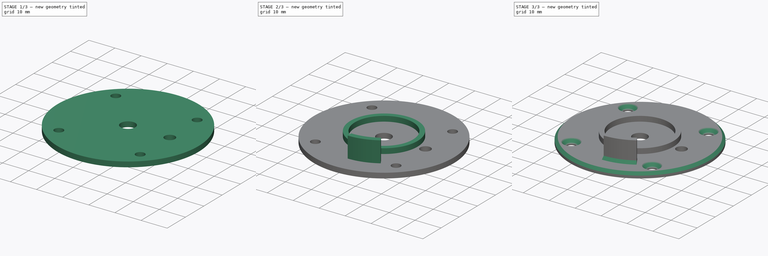
[diagram: build sequence overview — one tinted view per stage of 3, left to right]
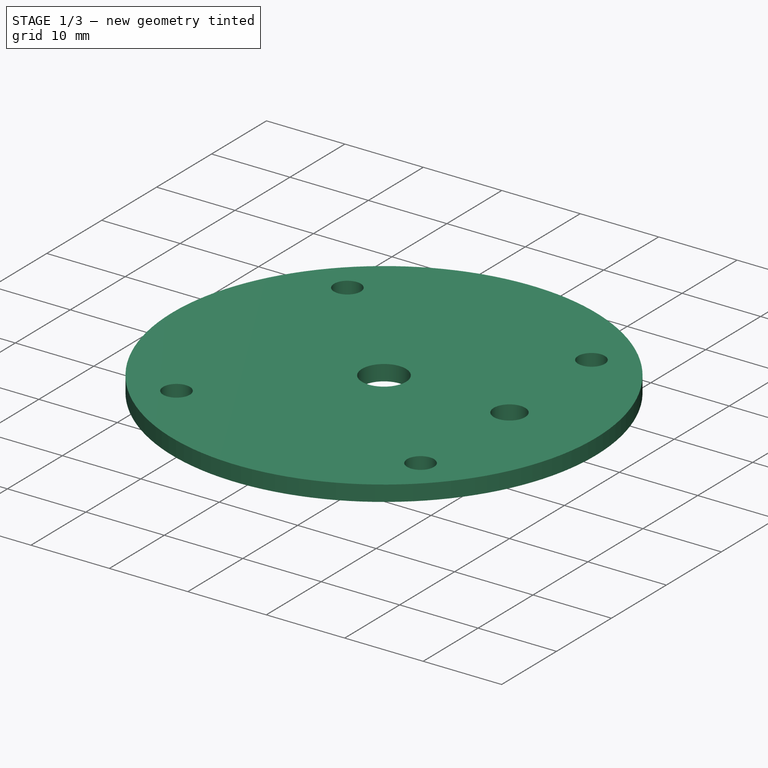
[diagram: stage 1 of 3 — iso view after this stage's code; geometry added in this stage tinted green]
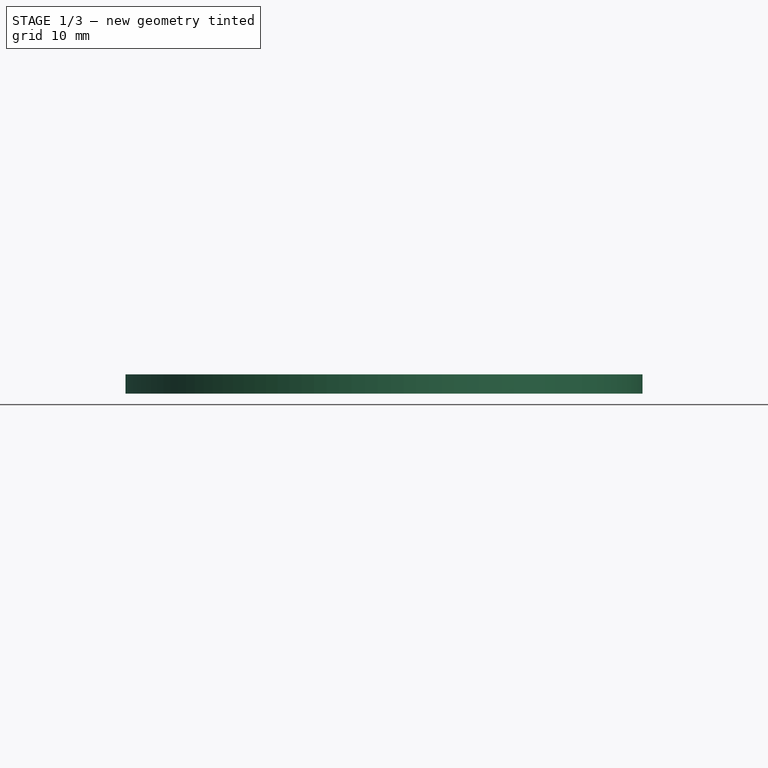
[diagram: stage 1 of 3 — front view after this stage's code; geometry added in this stage tinted green]
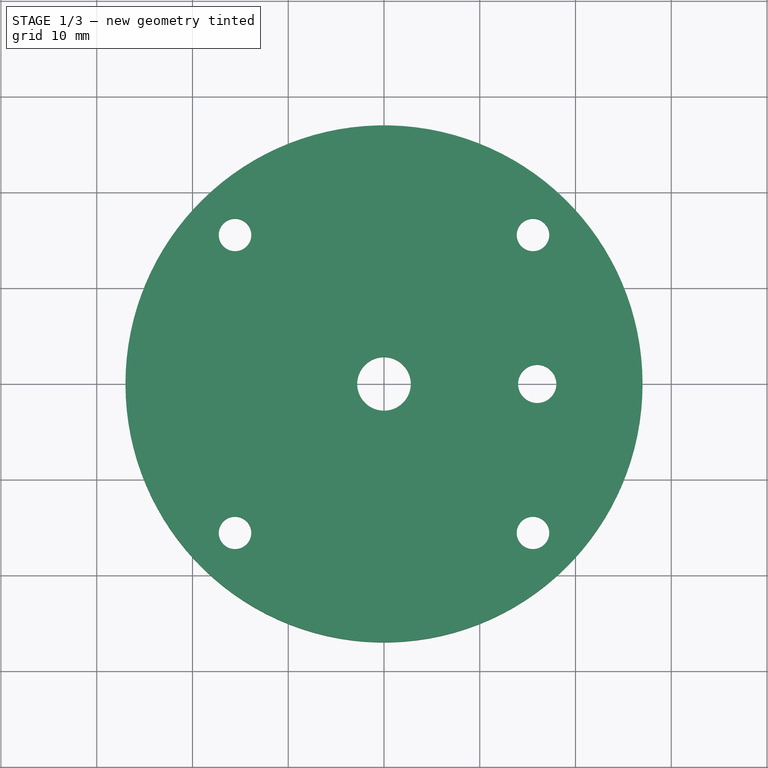
[diagram: stage 1 of 3 — top view after this stage's code; geometry added in this stage tinted green]
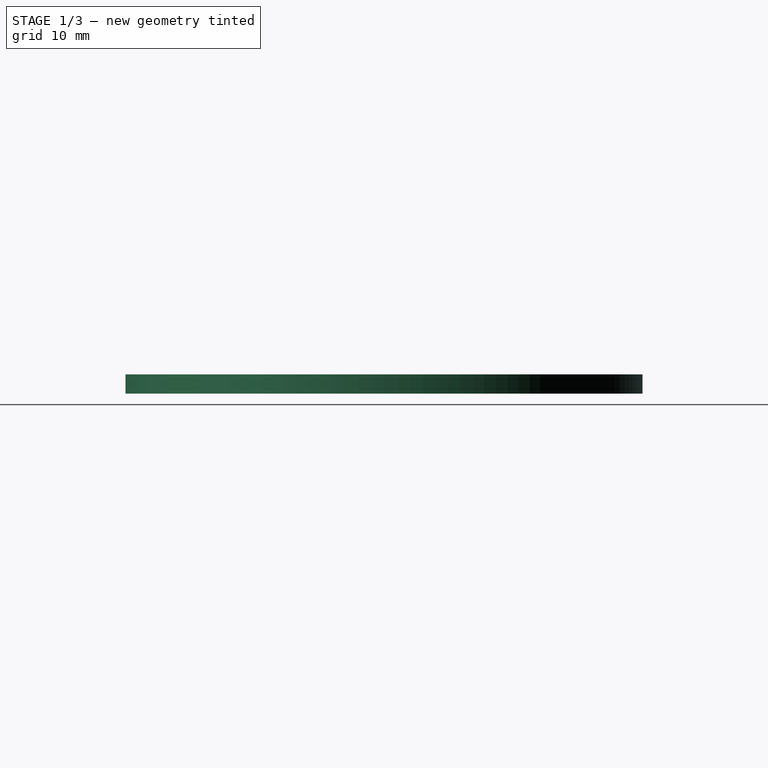
[diagram: stage 1 of 3 — right view after this stage's code; geometry added in this stage tinted green]
FCSTD DOCUMENT  (FreeCAD 0.15R4671 (Git))
Label: laser_cap
License: CreativeCommons Attribution-ShareAlike
LicenseURL: http://creativecommons.org/licenses/by-sa/4.0/
objects: Sketcher::SketchObject×3, PartDesign::Pad×2, PartDesign::Chamfer×2, Part::Cylinder×1, PartDesign::Pocket×1
note: 12 computed .brp shape members not serialized (recipe doc carries the construction recipe); baked Part::Feature solids carry a one-line shape summary decoded from their .brp

FEATURE [Part::Cylinder] Cylinder
  Angle = 360
  Height = 2
  Radius = 27
FEATURE [Sketcher::SketchObject] Sketch
  Placement = pos=(0,0,2) rot=(0,0,1;0rad)
  Support = -> Cylinder [Face2]
  sketch-geometry (9):
    g0: Circle [constr] CenterX=0 CenterY=0 CenterZ=0 NormalX=0 NormalY=0 NormalZ=1 Radius=22
    g1: Circle CenterX=-15.5563 CenterY=15.5563 CenterZ=0 NormalX=0 NormalY=0 NormalZ=1 Radius=1.7
    g2: Circle CenterX=-15.5563 CenterY=-15.5563 CenterZ=0 NormalX=0 NormalY=0 NormalZ=1 Radius=1.7
    g3: Circle CenterX=15.5563 CenterY=-15.5563 CenterZ=0 NormalX=0 NormalY=0 NormalZ=1 Radius=1.7
    g4: Circle CenterX=15.5563 CenterY=15.5563 CenterZ=0 NormalX=0 NormalY=0 NormalZ=1 Radius=1.7
    g5: LineSegment [constr] StartX=-15.5563 StartY=15.5563 StartZ=0 EndX=-15.5563 EndY=-15.5563 EndZ=0
    g6: LineSegment [constr] StartX=-15.5563 StartY=15.5563 StartZ=0 EndX=15.5563 EndY=15.5563 EndZ=0
    g7: Circle CenterX=0 CenterY=0 CenterZ=0 NormalX=0 NormalY=0 NormalZ=1 Radius=2.8
    g8: Circle CenterX=16 CenterY=0 CenterZ=0 NormalX=0 NormalY=0 NormalZ=1 Radius=2
  constraints (21):
    c: Coincident(g0,g-1)
    c: Radius(g0) = 22
    c: PointOnObject(g3,g0)
    c: PointOnObject(g4,g0)
    c: Equal(g1,g4)
    c: Equal(g4,g2)
    c: Equal(g2,g3)
    c: Radius(g1) = 1.7
    c: Symmetric(g1,g4,g-2)
    c: Symmetric(g2,g3,g-2)
    c: Symmetric(g1,g2,g-1)
    c: Coincident(g5,g1)
    c: Coincident(g5,g2)
    c: Coincident(g6,g1)
    c: Coincident(g6,g4)
    c: Equal(g6,g5)
    c: Coincident(g7,g-1)
    c: Radius(g7) = 2.8
    c: PointOnObject(g8,g-1)
    c: DistanceX(g-1,g8) = 16
    c: Radius(g8) = 2
FEATURE [PartDesign::Pocket] Pocket
  Length = 5
  Sketch = -> Sketch
  Type = 1
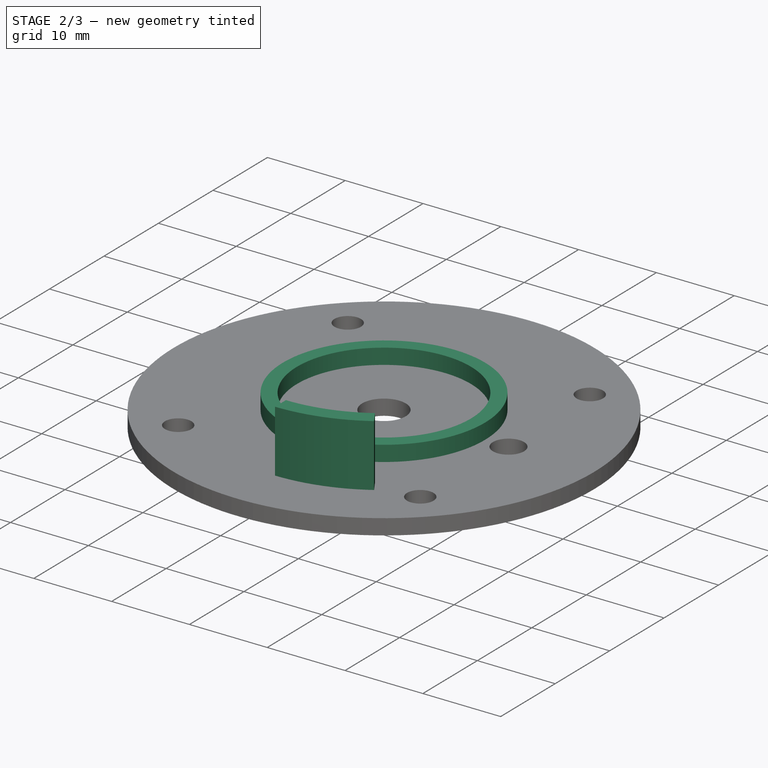
[diagram: stage 2 of 3 — iso view after this stage's code; geometry added in this stage tinted green]
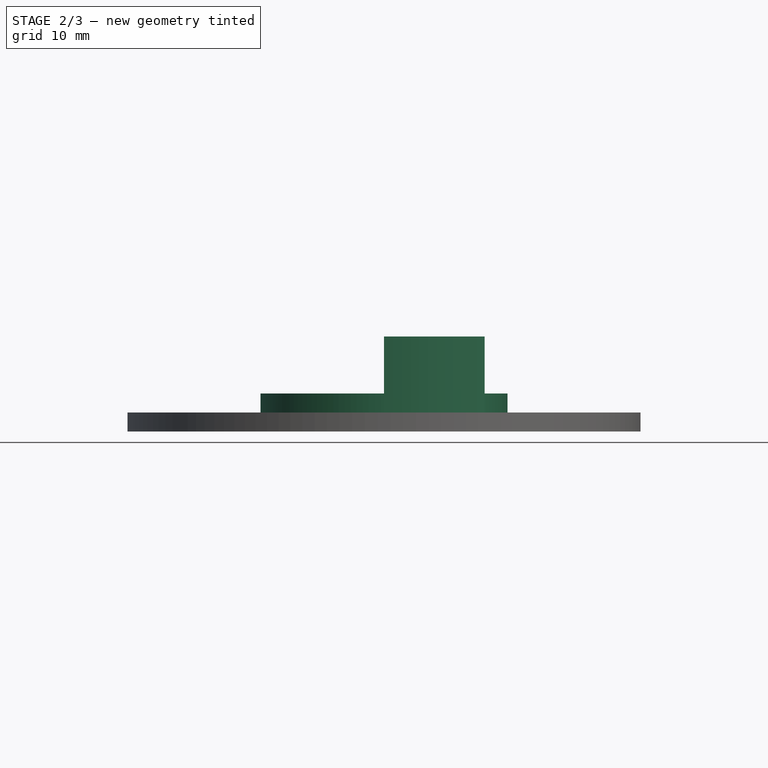
[diagram: stage 2 of 3 — front view after this stage's code; geometry added in this stage tinted green]
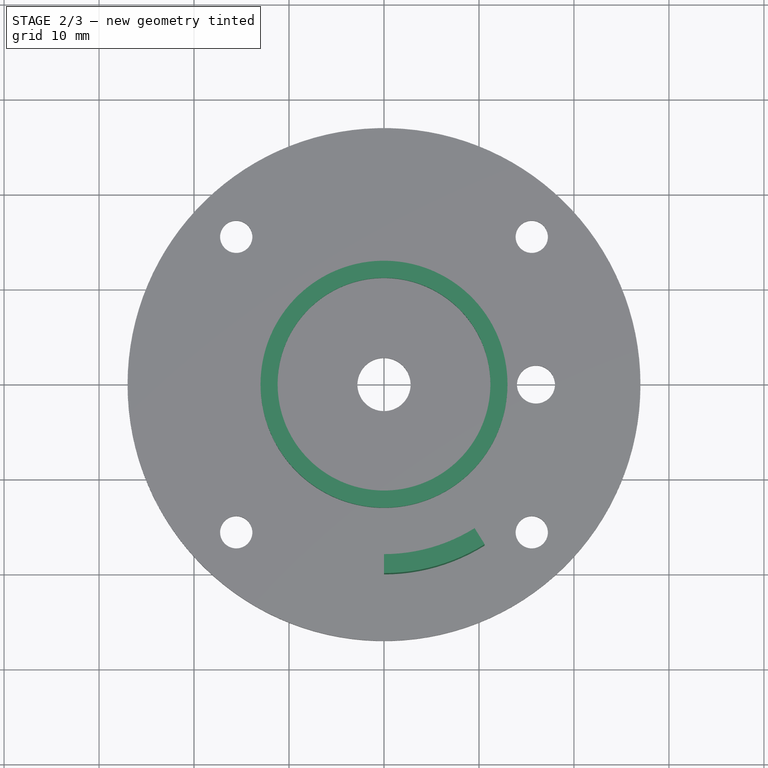
[diagram: stage 2 of 3 — top view after this stage's code; geometry added in this stage tinted green]
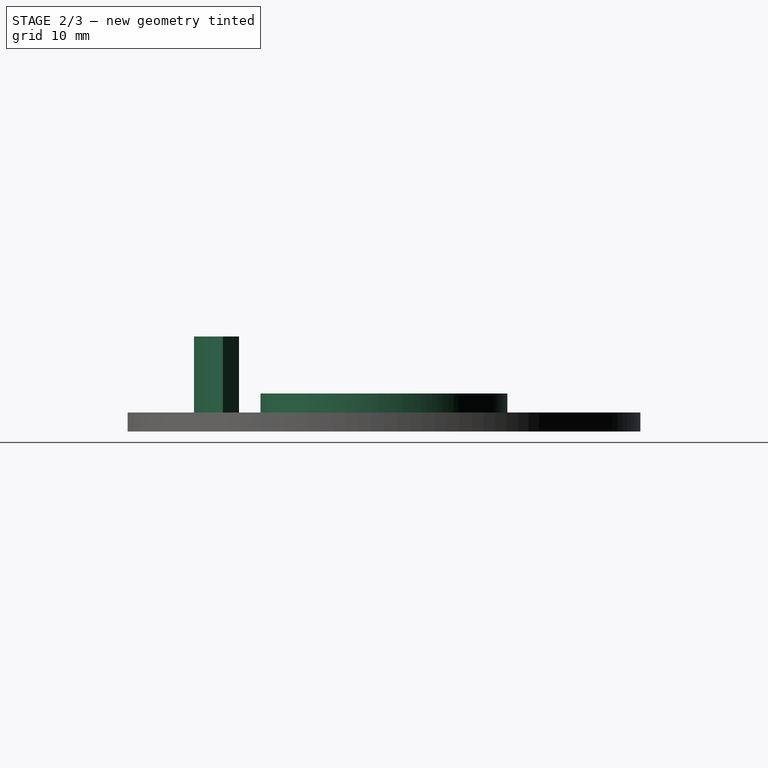
[diagram: stage 2 of 3 — right view after this stage's code; geometry added in this stage tinted green]
FEATURE [Sketcher::SketchObject] Sketch001
  Placement = pos=(0,0,2) rot=(0,0,1;0rad)
  Support = -> Pocket [Face2]
  sketch-geometry (2):
    g0: Circle CenterX=0 CenterY=0 CenterZ=0 NormalX=0 NormalY=0 NormalZ=1 Radius=11.2
    g1: Circle CenterX=0 CenterY=0 CenterZ=0 NormalX=0 NormalY=0 NormalZ=1 Radius=13
  constraints (4):
    c: Coincident(g0,g-1)
    c: Radius(g0) = 11.2
    c: Radius(g1) = 13
    c: Coincident(g-1,g1)
FEATURE [PartDesign::Pad] Pad
  Length = 2
  Length2 = 100
  Sketch = -> Sketch001
  Type = 0
FEATURE [Sketcher::SketchObject] Sketch002
  Placement = pos=(0,0,2) rot=(0,0,1;0rad)
  Support = -> Pad [Face2]
  sketch-geometry (4):
    g0: ArcOfCircle CenterX=0 CenterY=0 CenterZ=0 NormalX=0 NormalY=0 NormalZ=1 Radius=20 StartAngle=4.71239 EndAngle=5.27089
    g1: ArcOfCircle CenterX=0 CenterY=0 CenterZ=0 NormalX=0 NormalY=0 NormalZ=1 Radius=18 StartAngle=4.71239 EndAngle=5.27089
    g2: LineSegment StartX=6e-12 StartY=-20 StartZ=0 EndX=6e-12 EndY=-18 EndZ=0
    g3: LineSegment StartX=10.5984 StartY=-16.961 StartZ=0 EndX=9.53855 EndY=-15.2649 EndZ=0
  constraints (12):
    c: Coincident(g1,g-1)
    c: Coincident(g2,g0)
    c: Coincident(g2,g1)
    c: Coincident(g3,g0)
    c: Coincident(g3,g1)
    c: PointOnObject(g-1,g3)
    c: PointOnObject(g-1,g2)
    c: Coincident(g0,g-1)
    c: Radius(g1) = 18
    c: Radius(g0) = 20
    c: PointOnObject(g0,g-2)
    c: Angle(g2,g3) = 0.558505
FEATURE [PartDesign::Pad] Pad001
  Length = 8
  Length2 = 100
  Sketch = -> Sketch002
  Type = 0
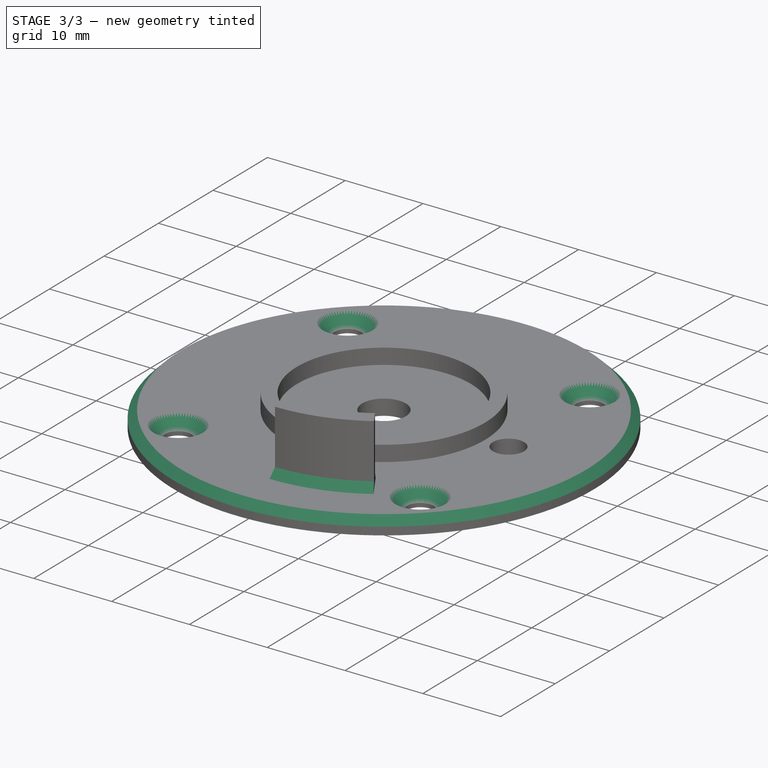
[diagram: stage 3 of 3 — iso view after this stage's code; geometry added in this stage tinted green]
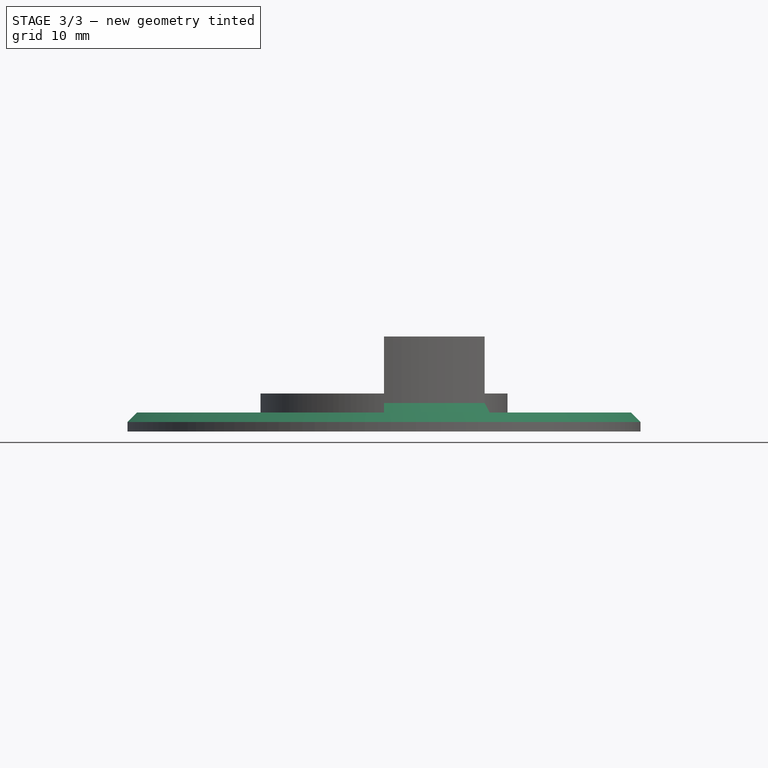
[diagram: stage 3 of 3 — front view after this stage's code; geometry added in this stage tinted green]
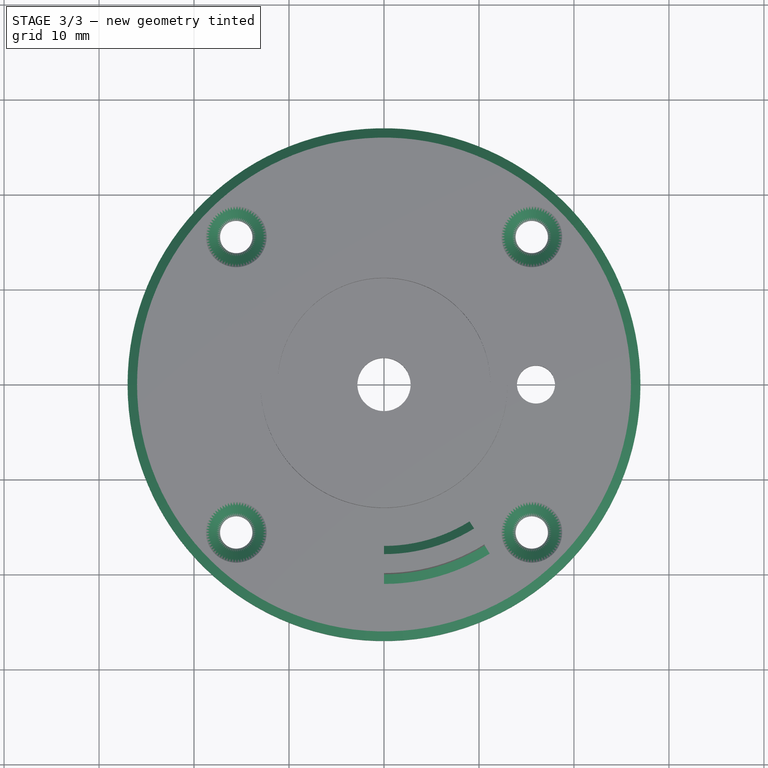
[diagram: stage 3 of 3 — top view after this stage's code; geometry added in this stage tinted green]
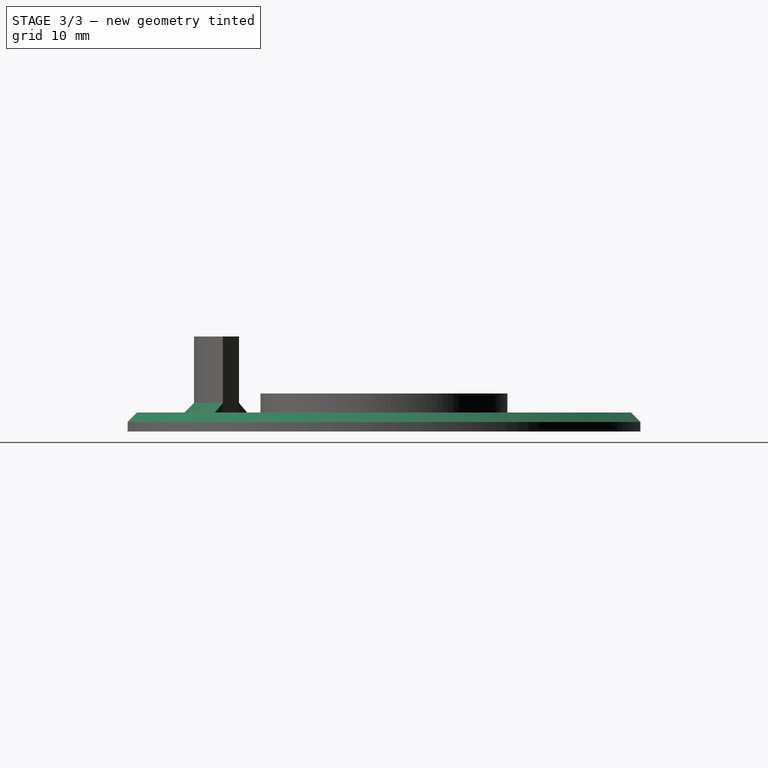
[diagram: stage 3 of 3 — right view after this stage's code; geometry added in this stage tinted green]
FEATURE [PartDesign::Chamfer] Chamfer
  Base = -> Pad001 [Edge1,Edge9,Edge11]
  Size = 1
FEATURE [PartDesign::Chamfer] Chamfer001
  Base = -> Chamfer [Edge20,Edge25,Edge21,Edge22]
  Size = 1.5
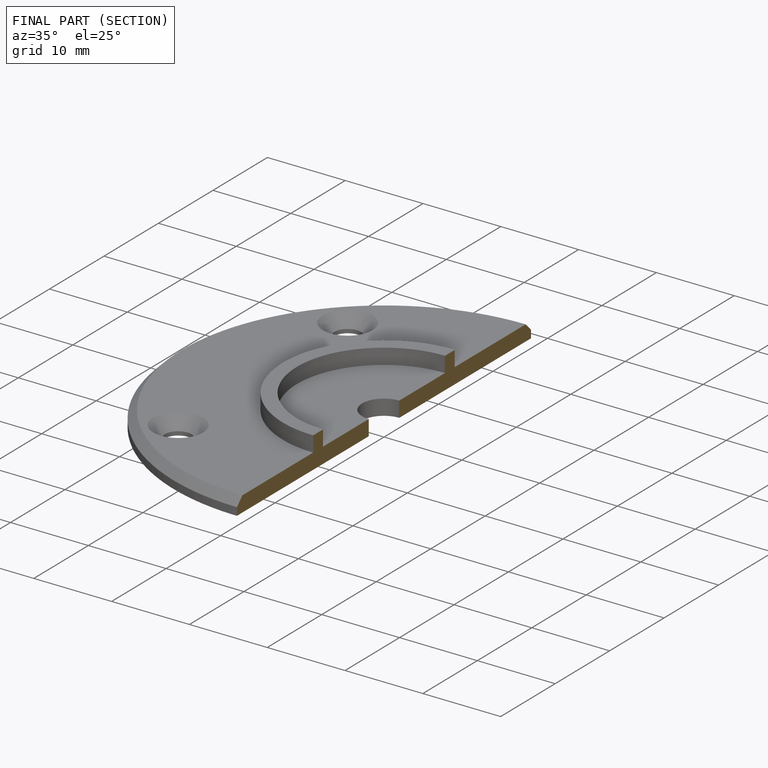
[diagram: finished part — half-section view (interior)]
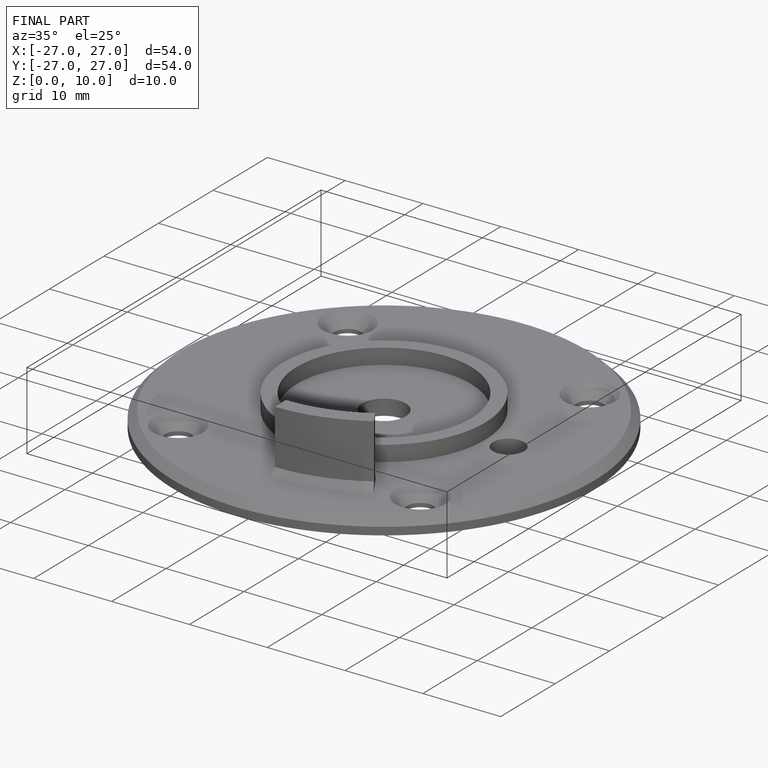
[diagram: finished part — iso view with bounding-box wireframe]
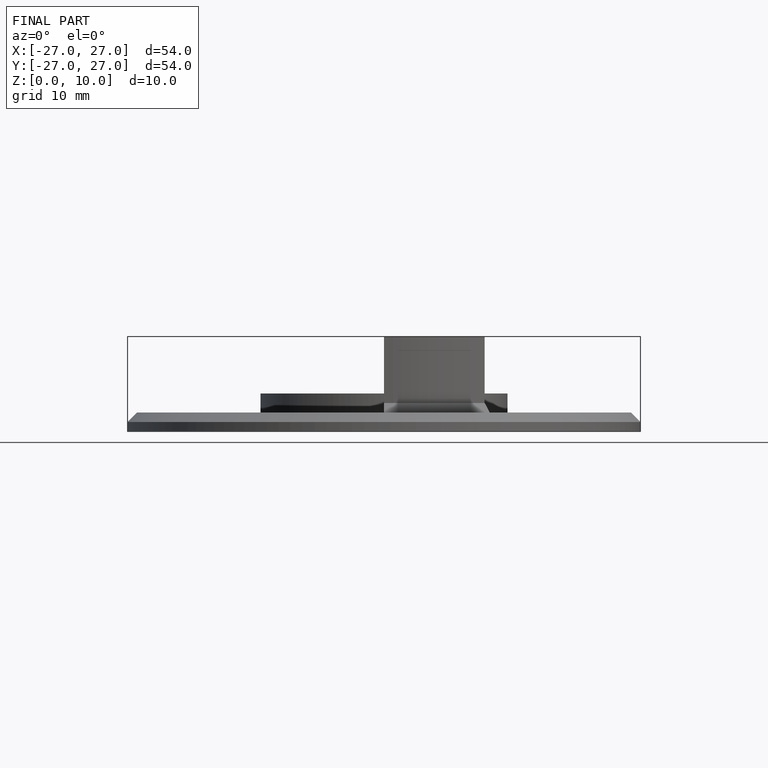
[diagram: finished part — front view with bounding-box wireframe]
